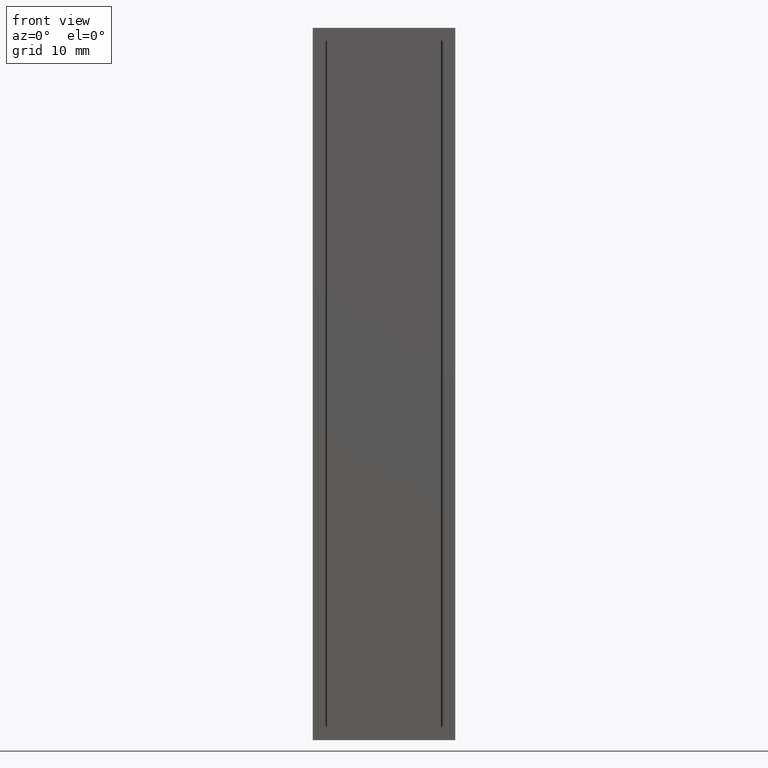
[diagram: clean part render]
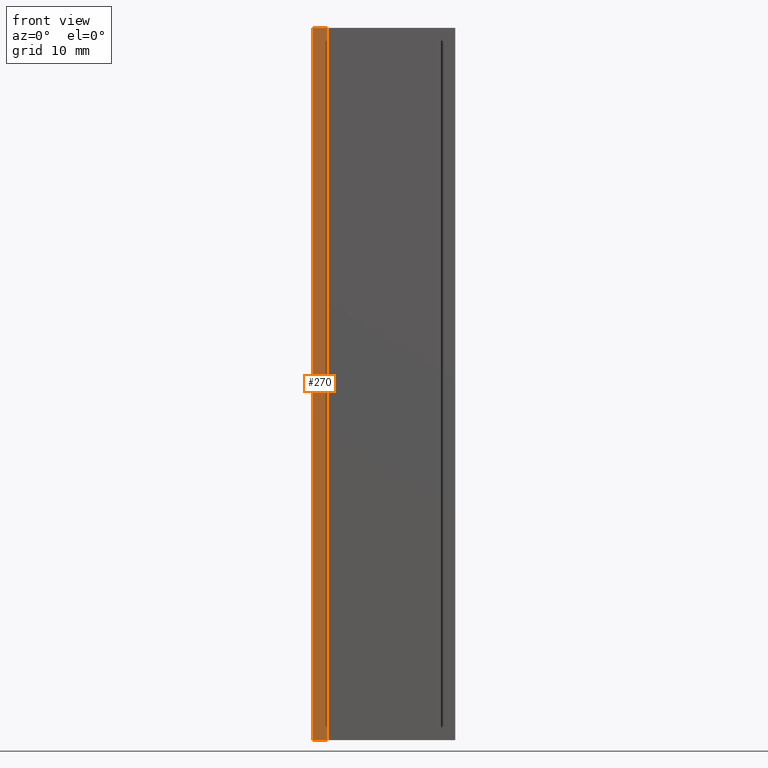
[diagram: same view with one face highlighted and labeled with its STEP entity id]
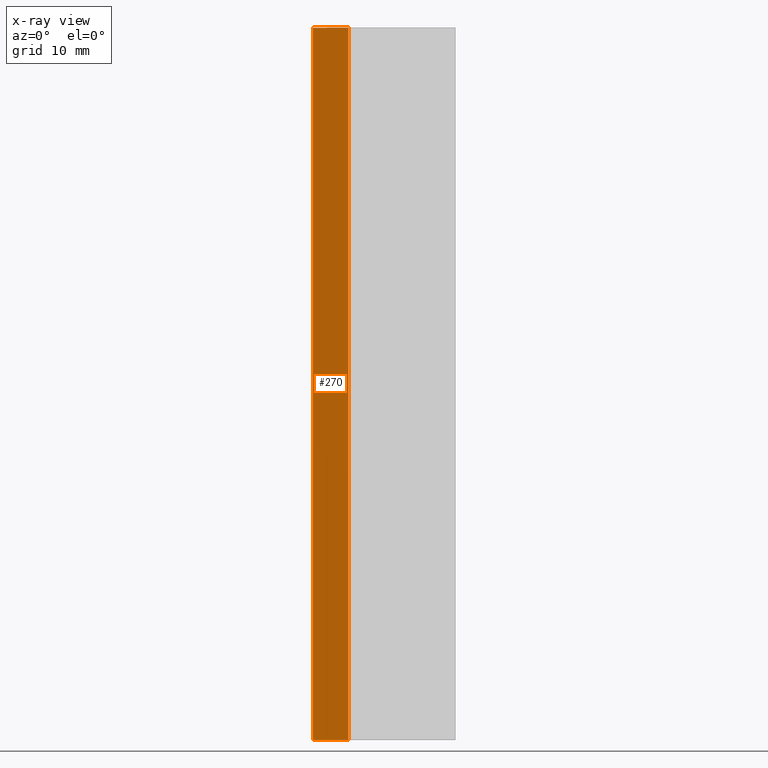
[diagram: x-ray of the same camera — body ghosted, the highlighted face saturated]
A machine part, front view. The second image highlights one B-rep face of the part: STEP entity #270.
The next image is the same camera in x-ray: the body ghosted, the highlighted face saturated — about 0% of this face is hidden behind the body in this view.
In plain terms, the highlighted planar face has unit normal (0, -1, 0).
Its self-contained STEP definition (entity closure, byte-faithful):
#24=FACE_OUTER_BOUND('',#38,.T.);
#38=EDGE_LOOP('',(#211,#212,#213,#214));
#70=LINE('',#414,#106);
#71=LINE('',#417,#107);
#72=LINE('',#419,#108);
#73=LINE('',#420,#109);
#106=VECTOR('',#338,100.);
#107=VECTOR('',#341,5.);
#108=VECTOR('',#342,5.);
#109=VECTOR('',#343,100.);
#133=VERTEX_POINT('',#410);
#134=VERTEX_POINT('',#412);
#135=VERTEX_POINT('',#416);
#136=VERTEX_POINT('',#418);
#166=EDGE_CURVE('',#133,#134,#70,.T.);
#167=EDGE_CURVE('',#133,#135,#71,.T.);
#168=EDGE_CURVE('',#136,#134,#72,.T.);
#169=EDGE_CURVE('',#135,#136,#73,.T.);
#211=ORIENTED_EDGE('',*,*,#167,.F.);
#212=ORIENTED_EDGE('',*,*,#166,.T.);
#213=ORIENTED_EDGE('',*,*,#168,.F.);
#214=ORIENTED_EDGE('',*,*,#169,.F.);
#256=PLANE('',#286);
#270=ADVANCED_FACE('',(#24),#256,.T.);
#286=AXIS2_PLACEMENT_3D('',#415,#339,#340);
#338=DIRECTION('',(0.,0.,1.));
#339=DIRECTION('center_axis',(1.66533453693773E-16,-1.,0.));
#340=DIRECTION('ref_axis',(1.,1.55431223447522E-16,0.));
#341=DIRECTION('',(-1.,-1.66533453693773E-16,0.));
#342=DIRECTION('',(1.,1.66533453693773E-16,0.));
#343=DIRECTION('',(0.,0.,1.));
#410=CARTESIAN_POINT('',(-5.,1.25,0.));
#412=CARTESIAN_POINT('',(-5.,1.25,100.));
#414=CARTESIAN_POINT('',(-5.,1.25,0.));
#415=CARTESIAN_POINT('Origin',(-10.,1.25,0.));
#416=CARTESIAN_POINT('',(-10.,1.25,0.));
#417=CARTESIAN_POINT('',(-5.,1.25,0.));
#418=CARTESIAN_POINT('',(-10.,1.25,100.));
#419=CARTESIAN_POINT('',(-5.,1.25,100.));
#420=CARTESIAN_POINT('',(-10.,1.25,0.));